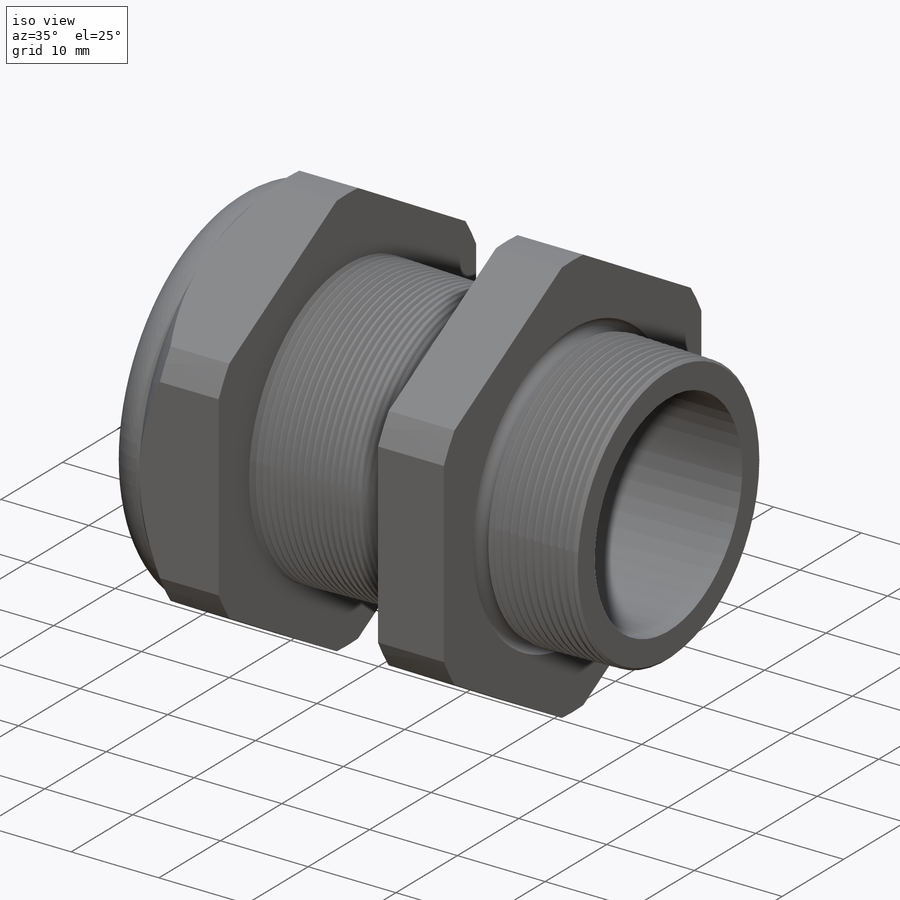
[diagram: iso view]
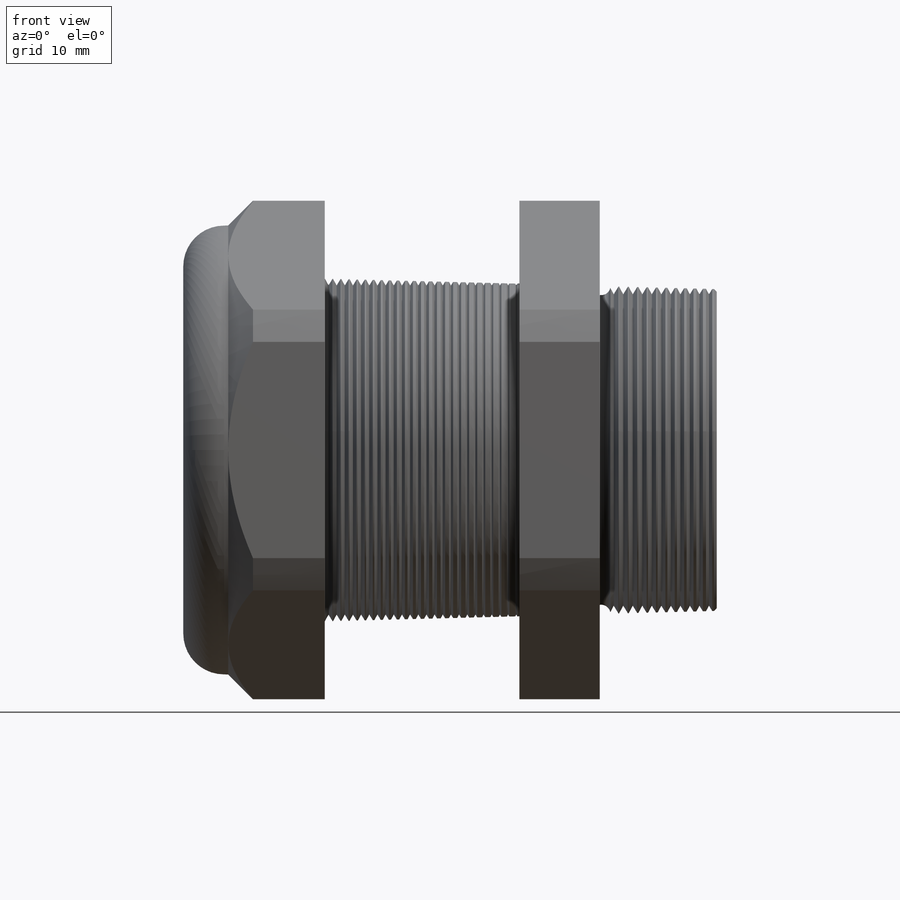
[diagram: front view]
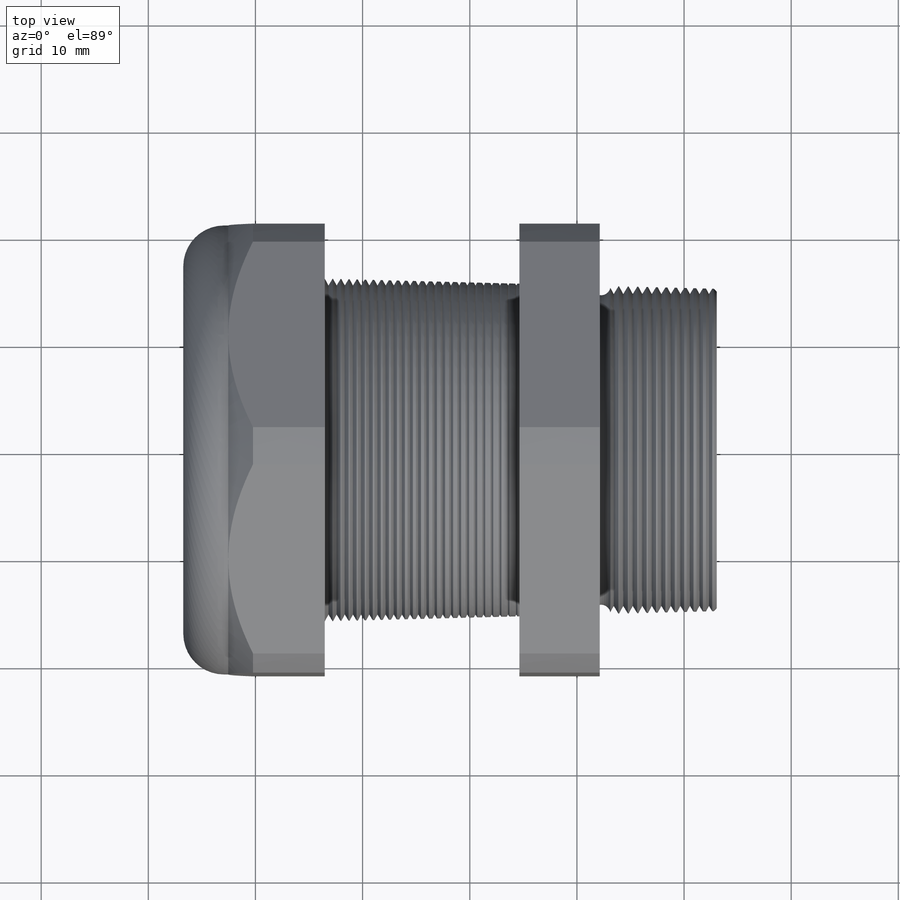
[diagram: top view]
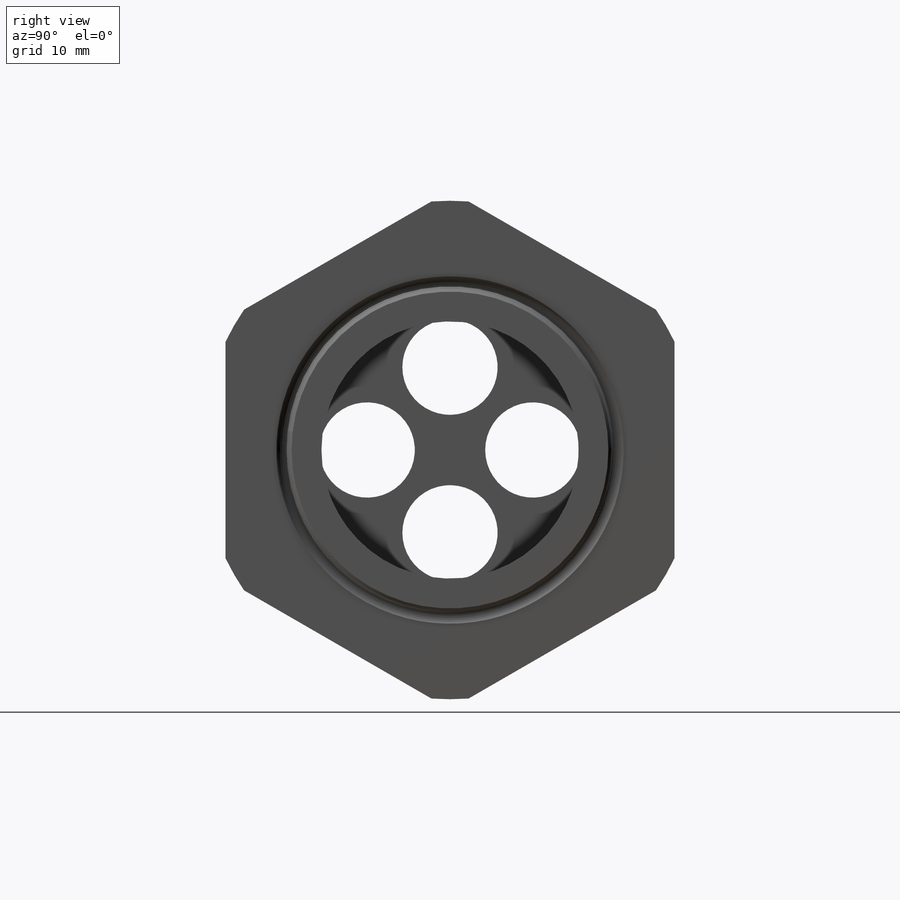
[diagram: right view]
SOLIDWORKS PART (.sldprt)
format: sldprt  version: not decoded by parser v0  size: 1,356,800 bytes
history: native  units: mm
features: sketch x11, cut_extrude x6, cut_revolve x3, pattern_linear x2, material x1, revolve x1, fillet x1, chamfer x1, extrude x1, pattern_circular x1 (+13 scaffold rows collapsed)
feature tree (41):
  scaffold x13  (default folders/planes/origin — collapsed)
  material  "Material <not specified>"
  sketch  "Sketch10"  dims[c1.D1=53.848mm c1.D2=24.892mm c1.D3=15.24mm c1.D4=12.8905mm c2.D3=12.8905mm c2.D4=~8.662129mm c3.D4=91.5deg c3.D5=12.8905mm c3.A=7.62mm c4.D5=28.956mm c5.D5=~1.649495deg c5.D4=7.874mm c5.D6=41.91mm c5.D7=15.24mm c5.D8=83.82mm c5.D9=4.2mm c5.D10=9.0mm c5.D11=7.5mm c5.D12=7.874mm c5.D=10.922mm c6.D12=5.2705mm c6.D3=~11.203252mm c7.D3=~91.649495deg c7.D4=5.2705mm c8.D3=~11.203252mm c9.D3=~91.649495deg c10.D3=~7.877264mm c11.D3=~1.649495deg c11.D4=~7.877264mm c12.D3=~19.114643mm c13.D3=1.5deg c13.A=32.004mm c13.D2=53.848mm c13.D1=49.784mm c14.D2=24.892mm c14.D3=~18.040182mm c15.D3=1.5deg c15.D4=3.048mm]
  revolve  "Revolve2"  Angle=360deg
  sketch  "Sketch12"  dims[c1.D2=46.5201mm c1.D1=41.91mm c2.D2=~0.385494mm c2.D3=~1.335389mm]
  cut_extrude  "Cut-Extrude2"  [1 undecoded]
  fillet  "Fillet4"  Radius=3.81mm
  sketch  "Sketch19"
  cut_extrude  "Cut-Extrude3"  Depth=3.99796mm
  chamfer  "Chamfer1"  Distance=0.254mm Angle=45deg
  sketch  "Sketch21"
  extrude  "plug"  Depth=12.7mm
  sketch  "Sketch22"  dims[D1=0.254mm]
  cut_extrude  "Cut-Extrude4"  Depth=0.508mm
  sketch  "Sketch27"  dims[c1.holedia=8.89mm c1.D1=3.048mm c1.distfromcentre=2.667mm c2.D1=~0.01778mm]
  cut_extrude  "plugholes"  [1 undecoded]
  pattern_circular  "CirPattern1"  Count=4 Angle=360deg holeinstances=4
  sketch  "Sketch28"  dims[midholedia=8.89mm]
  cut_extrude  "midhole"  [1 undecoded]
  sketch  "Sketch29"  dims[c1.D1=~0.927778mm c2.D1=60.0deg c2.D2=~1.048124mm c3.D2=60.0deg c3.D3=0.635mm]
  cut_revolve  "Cut-Revolve1"  Angle=360deg
  pattern_linear  "LPattern1"  Count1=24 Count2=1 Spacing1=0.762mm Spacing2=50mm
  sketch  "Sketch30"  dims[c1.D1=~1.030604mm c2.D1=60.0deg c2.D2=~1.13279mm c3.D2=60.0deg c3.D3=0.762mm]
  cut_revolve  "Cut-Revolve2"  Angle=360deg
  pattern_linear  "LPattern2"  Count1=12 Count2=1 Spacing1=0.889mm Spacing2=50mm
  sketch  "Sketch31"
  cut_extrude  "Cut-Extrude5"  [1 undecoded]
  sketch  "Sketch32"  dims[D2=1.778mm D1=0.127mm]
  cut_revolve  "Cut-Revolve3"  Angle=360deg
decode coverage: 20 of 27 modeling features carry decoded parameters
note: ~ marks probable driven/reference dimensions
note: 4 parameter values undecoded
summary: no parameter record found for 4 features
note: suppression state not decoded; provenance and decode notes live in map.json
